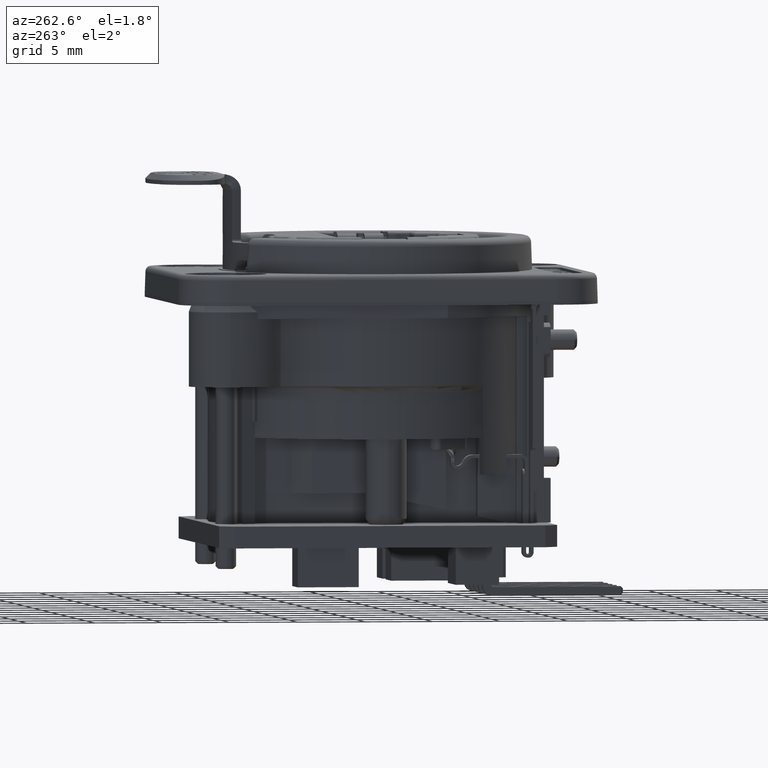
[diagram: clean part render]
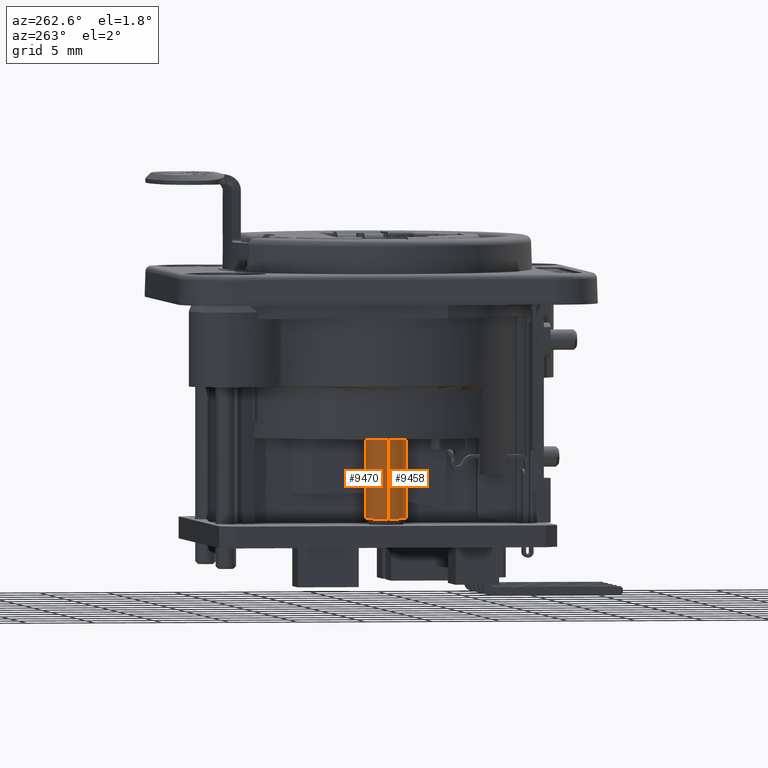
[diagram: same view with one multi-face feature highlighted, each face labeled with its STEP entity id]
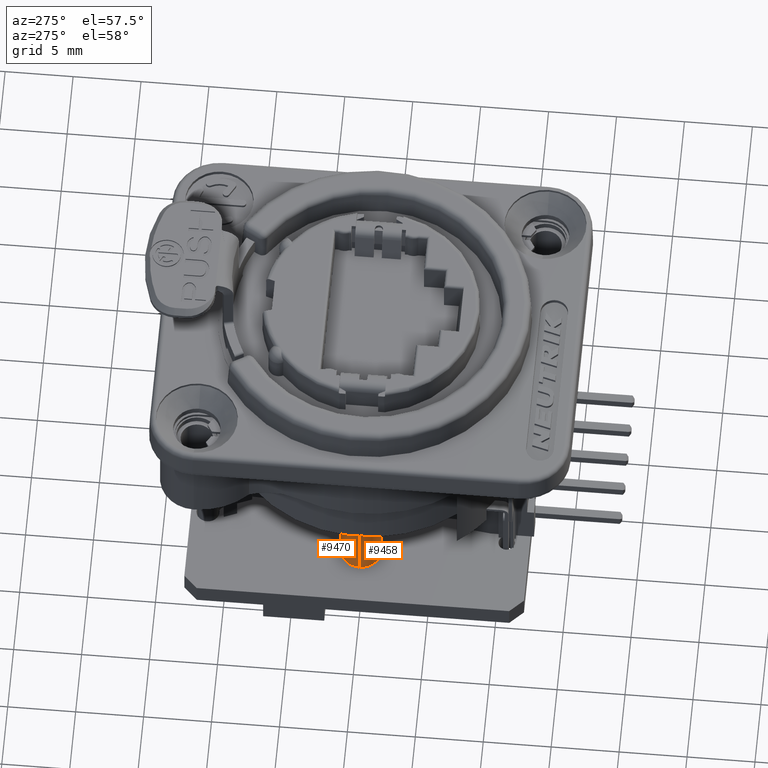
[diagram: same view with one multi-face feature highlighted, each face labeled with its STEP entity id]
A machine part, auxiliary view. The highlighted faces form ONE feature: a constant-radius fillet chain: 2 tangent blend faces with common blend radius 1.5 mm. The faces share edges in the B-rep.
A second angle (auxiliary view) of the same feature is appended — it is thin or edge-on in the first view.
Their STEP definitions:
[1] entity #9470 (Cylinder):
#270=CARTESIAN_POINT('',(-8.425E0,0.E0,-1.47E1));
#271=DIRECTION('',(0.E0,0.E0,-1.E0));
#272=DIRECTION('',(-1.E0,0.E0,0.E0));
#273=AXIS2_PLACEMENT_3D('',#270,#271,#272);
#457=CARTESIAN_POINT('',(-8.425E0,0.E0,-2.056698729811E1));
#458=DIRECTION('',(0.E0,0.E0,-1.E0));
#459=DIRECTION('',(-1.E0,0.E0,0.E0));
#460=AXIS2_PLACEMENT_3D('',#457,#458,#459);
#476=DIRECTION('',(0.E0,0.E0,-1.E0));
#477=VECTOR('',#476,5.866987298108E0);
#478=CARTESIAN_POINT('',(-6.925E0,0.E0,-1.47E1));
#479=LINE('',#478,#477);
#480=DIRECTION('',(0.E0,0.E0,-1.E0));
#481=VECTOR('',#480,5.866987298108E0);
#482=CARTESIAN_POINT('',(-9.925E0,0.E0,-1.47E1));
#483=LINE('',#482,#481);
#7273=CARTESIAN_POINT('',(-9.925E0,0.E0,-1.47E1));
#7274=CARTESIAN_POINT('',(-6.925E0,0.E0,-1.47E1));
#7275=VERTEX_POINT('',#7273);
#7276=VERTEX_POINT('',#7274);
#8077=CARTESIAN_POINT('',(-6.925E0,0.E0,-2.056698729811E1));
#8078=CARTESIAN_POINT('',(-9.925E0,0.E0,-2.056698729811E1));
#8079=VERTEX_POINT('',#8077);
#8080=VERTEX_POINT('',#8078);
#9459=CARTESIAN_POINT('',(-8.425E0,0.E0,-1.47E1));
#9460=DIRECTION('',(0.E0,0.E0,-1.E0));
#9461=DIRECTION('',(-1.E0,0.E0,0.E0));
#9462=AXIS2_PLACEMENT_3D('',#9459,#9460,#9461);
#9463=CYLINDRICAL_SURFACE('',#9462,1.5E0);
#9464=ORIENTED_EDGE('',*,*,#9310,.F.);
#9465=ORIENTED_EDGE('',*,*,#9454,.T.);
#9466=ORIENTED_EDGE('',*,*,#9425,.T.);
#9467=ORIENTED_EDGE('',*,*,#9451,.F.);
#9468=EDGE_LOOP('',(#9464,#9465,#9466,#9467));
#9469=FACE_OUTER_BOUND('',#9468,.F.);
#9470=ADVANCED_FACE('',(#9469),#9463,.T.);
#274=CIRCLE('',#273,1.5E0);
#461=CIRCLE('',#460,1.5E0);
#9310=EDGE_CURVE('',#7275,#7276,#274,.T.);
#9425=EDGE_CURVE('',#8080,#8079,#461,.T.);
#9451=EDGE_CURVE('',#7276,#8079,#479,.T.);
#9454=EDGE_CURVE('',#7275,#8080,#483,.T.);
[2] entity #9458 (Cylinder):
#275=CARTESIAN_POINT('',(-8.425E0,0.E0,-1.47E1));
#276=DIRECTION('',(0.E0,0.E0,-1.E0));
#277=DIRECTION('',(1.E0,0.E0,0.E0));
#278=AXIS2_PLACEMENT_3D('',#275,#276,#277);
#471=CARTESIAN_POINT('',(-8.425E0,0.E0,-2.056698729811E1));
#472=DIRECTION('',(0.E0,0.E0,-1.E0));
#473=DIRECTION('',(1.E0,0.E0,0.E0));
#474=AXIS2_PLACEMENT_3D('',#471,#472,#473);
#476=DIRECTION('',(0.E0,0.E0,-1.E0));
#477=VECTOR('',#476,5.866987298108E0);
#478=CARTESIAN_POINT('',(-6.925E0,0.E0,-1.47E1));
#479=LINE('',#478,#477);
#480=DIRECTION('',(0.E0,0.E0,-1.E0));
#481=VECTOR('',#480,5.866987298108E0);
#482=CARTESIAN_POINT('',(-9.925E0,0.E0,-1.47E1));
#483=LINE('',#482,#481);
#7273=CARTESIAN_POINT('',(-9.925E0,0.E0,-1.47E1));
#7274=CARTESIAN_POINT('',(-6.925E0,0.E0,-1.47E1));
#7275=VERTEX_POINT('',#7273);
#7276=VERTEX_POINT('',#7274);
#8077=CARTESIAN_POINT('',(-6.925E0,0.E0,-2.056698729811E1));
#8078=CARTESIAN_POINT('',(-9.925E0,0.E0,-2.056698729811E1));
#8079=VERTEX_POINT('',#8077);
#8080=VERTEX_POINT('',#8078);
#9445=CARTESIAN_POINT('',(-8.425E0,0.E0,-1.47E1));
#9446=DIRECTION('',(0.E0,0.E0,-1.E0));
#9447=DIRECTION('',(-1.E0,0.E0,0.E0));
#9448=AXIS2_PLACEMENT_3D('',#9445,#9446,#9447);
#9449=CYLINDRICAL_SURFACE('',#9448,1.5E0);
#9450=ORIENTED_EDGE('',*,*,#9312,.F.);
#9452=ORIENTED_EDGE('',*,*,#9451,.T.);
#9453=ORIENTED_EDGE('',*,*,#9439,.T.);
#9455=ORIENTED_EDGE('',*,*,#9454,.F.);
#9456=EDGE_LOOP('',(#9450,#9452,#9453,#9455));
#9457=FACE_OUTER_BOUND('',#9456,.F.);
#9458=ADVANCED_FACE('',(#9457),#9449,.T.);
#279=CIRCLE('',#278,1.5E0);
#475=CIRCLE('',#474,1.5E0);
#9312=EDGE_CURVE('',#7276,#7275,#279,.T.);
#9439=EDGE_CURVE('',#8079,#8080,#475,.T.);
#9451=EDGE_CURVE('',#7276,#8079,#479,.T.);
#9454=EDGE_CURVE('',#7275,#8080,#483,.T.);